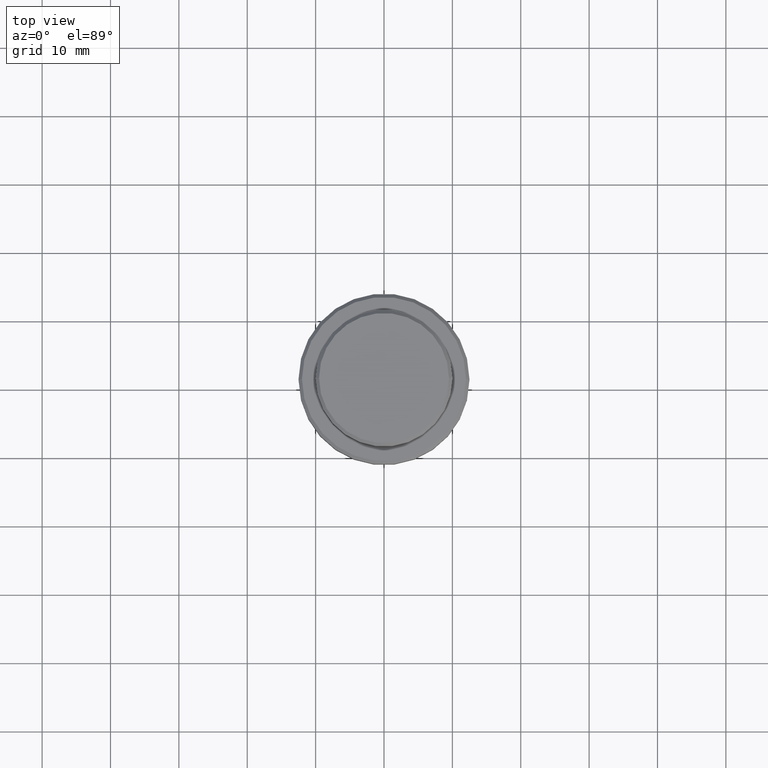
[diagram: clean part render]
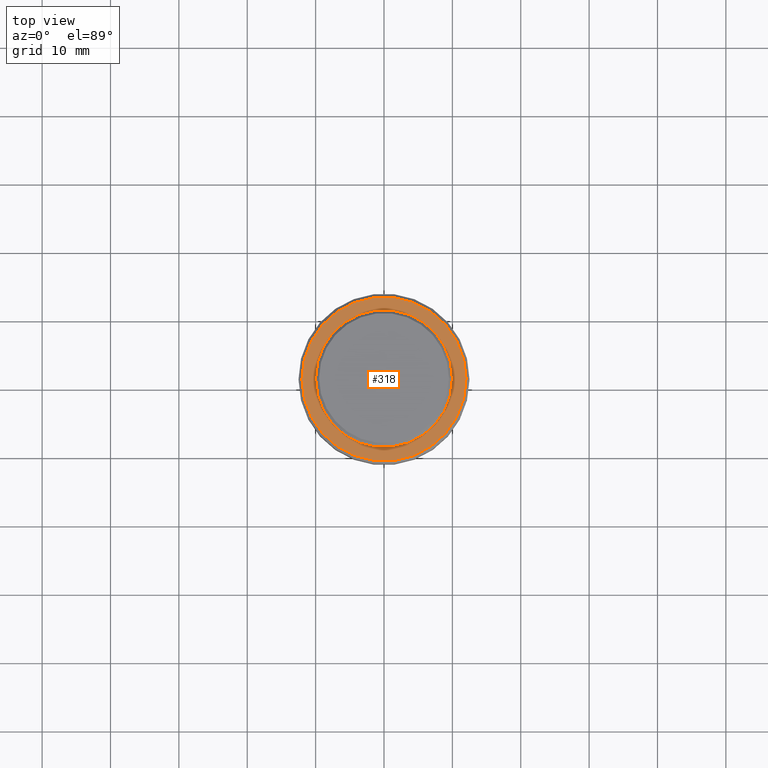
[diagram: same view with one face highlighted and labeled with its STEP entity id]
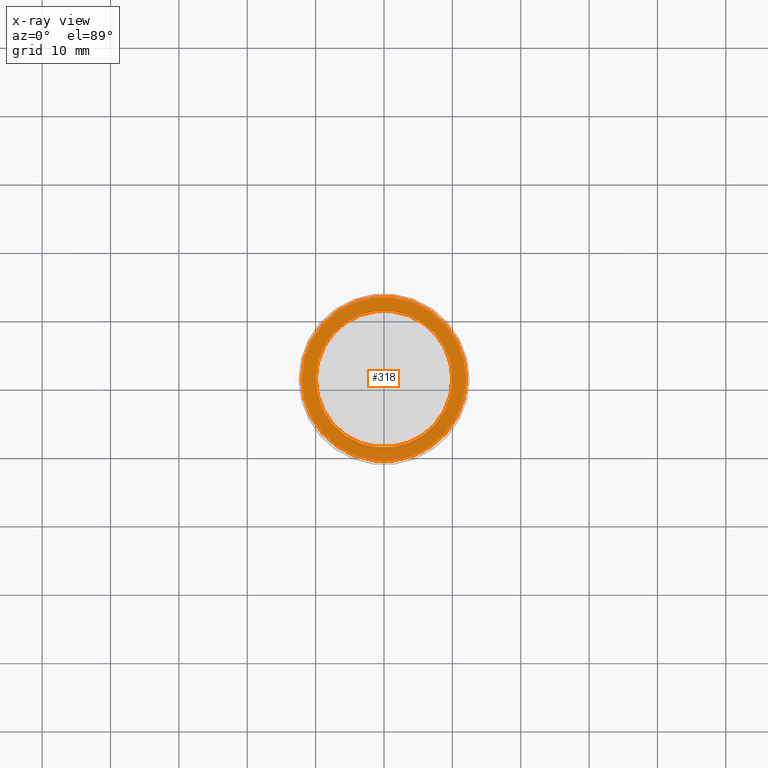
[diagram: x-ray of the same camera — body ghosted, the highlighted face saturated]
A machine part, top view. The second image highlights one B-rep face of the part: STEP entity #318.
The next image is the same camera in x-ray: the body ghosted, the highlighted face saturated — about 0% of this face is hidden behind the body in this view.
In plain terms, the highlighted planar face has unit normal (0, -0, 1).
Its self-contained STEP definition (entity closure, byte-faithful):
#12 = ORIENTED_EDGE ( 'NONE', *, *, #903, .T. ) ;
#14 = ORIENTED_EDGE ( 'NONE', *, *, #687, .T. ) ;
#23 = CARTESIAN_POINT ( 'NONE',  ( 0.000000000000000000, 0.000000000000000000, -9.000000000000000000 ) ) ;
#66 = CARTESIAN_POINT ( 'NONE',  ( 0.000000000000000000, 0.000000000000000000, -9.000000000000000000 ) ) ;
#109 = AXIS2_PLACEMENT_3D ( 'NONE', #23, #1107, #1230 ) ;
#111 = CARTESIAN_POINT ( 'NONE',  ( 0.000000000000000000, 0.000000000000000000, -9.000000000000000000 ) ) ;
#119 = EDGE_CURVE ( 'NONE', #1335, #567, #424, .T. ) ;
#126 = CARTESIAN_POINT ( 'NONE',  ( 11.99999999999999645, 1.500192328955507537E-15, -9.000000000000000000 ) ) ;
#138 = ORIENTED_EDGE ( 'NONE', *, *, #1353, .T. ) ;
#178 = CIRCLE ( 'NONE', #631, 9.999999999999992895 ) ;
#209 = EDGE_LOOP ( 'NONE', ( #342, #12 ) ) ;
#245 = VERTEX_POINT ( 'NONE', #1190 ) ;
#314 = DIRECTION ( 'NONE',  ( -0.000000000000000000, -0.000000000000000000, 1.000000000000000000 ) ) ;
#315 = AXIS2_PLACEMENT_3D ( 'NONE', #616, #314, #529 ) ;
#318 = ADVANCED_FACE ( 'NONE', ( #954, #1166 ), #1378, .T. ) ;
#342 = ORIENTED_EDGE ( 'NONE', *, *, #119, .T. ) ;
#360 = AXIS2_PLACEMENT_3D ( 'NONE', #950, #1398, #845 ) ;
#377 = DIRECTION ( 'NONE',  ( -0.000000000000000000, -0.000000000000000000, 1.000000000000000000 ) ) ;
#424 = CIRCLE ( 'NONE', #315, 11.99999999999999645 ) ;
#529 = DIRECTION ( 'NONE',  ( 1.000000000000000000, 0.000000000000000000, 0.000000000000000000 ) ) ;
#542 = CIRCLE ( 'NONE', #942, 11.99999999999999645 ) ;
#548 = DIRECTION ( 'NONE',  ( 0.000000000000000000, 0.000000000000000000, -1.000000000000000000 ) ) ;
#567 = VERTEX_POINT ( 'NONE', #126 ) ;
#616 = CARTESIAN_POINT ( 'NONE',  ( 0.000000000000000000, 0.000000000000000000, -9.000000000000000000 ) ) ;
#631 = AXIS2_PLACEMENT_3D ( 'NONE', #111, #548, #754 ) ;
#687 = EDGE_CURVE ( 'NONE', #245, #765, #178, .T. ) ;
#709 = DIRECTION ( 'NONE',  ( 1.000000000000000000, 0.000000000000000000, 0.000000000000000000 ) ) ;
#754 = DIRECTION ( 'NONE',  ( 1.000000000000000000, 0.000000000000000000, 0.000000000000000000 ) ) ;
#765 = VERTEX_POINT ( 'NONE', #1004 ) ;
#845 = DIRECTION ( 'NONE',  ( 1.000000000000000000, 0.000000000000000000, 0.000000000000000000 ) ) ;
#903 = EDGE_CURVE ( 'NONE', #567, #1335, #542, .T. ) ;
#942 = AXIS2_PLACEMENT_3D ( 'NONE', #66, #377, #709 ) ;
#950 = CARTESIAN_POINT ( 'NONE',  ( 0.000000000000000000, 9.499999999999992895, -9.000000000000000000 ) ) ;
#954 = FACE_OUTER_BOUND ( 'NONE', #209, .T. ) ;
#1004 = CARTESIAN_POINT ( 'NONE',  ( -9.999999999999992895, 1.224646799147352468E-15, -9.000000000000000000 ) ) ;
#1039 = CARTESIAN_POINT ( 'NONE',  ( -11.99999999999999645, 0.000000000000000000, -9.000000000000000000 ) ) ;
#1107 = DIRECTION ( 'NONE',  ( 0.000000000000000000, 0.000000000000000000, -1.000000000000000000 ) ) ;
#1166 = FACE_BOUND ( 'NONE', #1229, .T. ) ;
#1190 = CARTESIAN_POINT ( 'NONE',  ( 9.999999999999992895, 0.000000000000000000, -9.000000000000000000 ) ) ;
#1227 = CIRCLE ( 'NONE', #109, 9.999999999999992895 ) ;
#1229 = EDGE_LOOP ( 'NONE', ( #14, #138 ) ) ;
#1230 = DIRECTION ( 'NONE',  ( 1.000000000000000000, 0.000000000000000000, 0.000000000000000000 ) ) ;
#1335 = VERTEX_POINT ( 'NONE', #1039 ) ;
#1353 = EDGE_CURVE ( 'NONE', #765, #245, #1227, .T. ) ;
#1378 = PLANE ( 'NONE',  #360 ) ;
#1398 = DIRECTION ( 'NONE',  ( 0.000000000000000000, -0.000000000000000000, 1.000000000000000000 ) ) ;